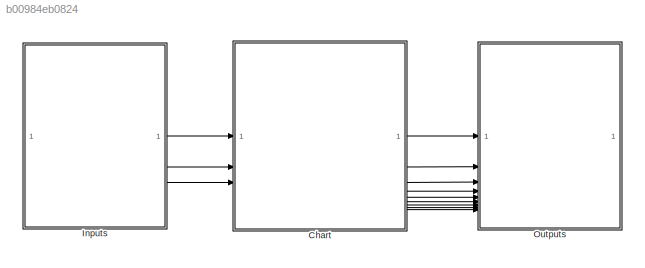
MODEL slx_b00984eb0824
KIND model
CONFIG AbsTol = auto
CONFIG EnableMultiTasking = on
CONFIG FixedStep = 1e-3
CONFIG MaxStep = auto
CONFIG MinStep = auto
CONFIG RelTol = 1e-3
CONFIG SampleTimeConstraint = Unconstrained
CONFIG SolverName = FixedStepAuto
CONFIG StartTime = 0.0
CONFIG StopTime = 10.0
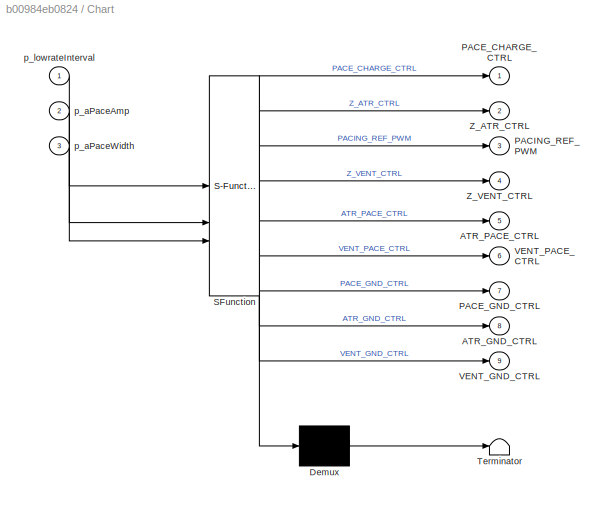
BLOCK [SubSystem] Chart
  ErrorFcn = Stateflow.Translate.translate
  PermitHierarchicalResolution = ExplicitOnly
  PortSchema = {"entries":[{"content":{"sides":[{"content":{"connectorIds":["In2","In1","In3"]},"type":"ConnectorPlacement.EquallySpacedRectSide","uuid":"98db9cea-c46a-4cd8-8963-54ca314d30e1"},{"content":{"connectorIds":["Out1","Out2","Out3","Out4","Out5","Out6","Out7","Out8","Out9"],"side":"RIGHT"},"type":"ConnectorPlacement.EquallySpacedRectSide","uuid":"53c86289-975b-4bf4-bda6-3305a5df9915"},{"content":{"conn...<+308ch>
  SFBlockType = Chart
  TreatAsAtomicUnit = on
BLOCK [Demux] Chart/ Demux 
  Outputs = 1
BLOCK [S-Function] Chart/ SFunction 
  EnableBusSupport = on
  FunctionName = sf_sfun
  PortCounts = [3 10]
  SFcnIsStateOwnerBlock = off
  SFunctionDeploymentMode = off
  Tag = Stateflow S-Function 3
BLOCK [Terminator] Chart/ Terminator 
BLOCK [Outport] Chart/ATR_GND_CTRL
  Port = 8
BLOCK [Outport] Chart/ATR_PACE_CTRL
  Port = 5
BLOCK [Outport] Chart/PACE_CHARGE_CTRL
BLOCK [Outport] Chart/PACE_GND_CTRL
  Port = 7
BLOCK [Outport] Chart/PACING_REF_PWM
  Port = 3
BLOCK [Outport] Chart/VENT_GND_CTRL
  Port = 9
BLOCK [Outport] Chart/VENT_PACE_CTRL
  Port = 6
BLOCK [Outport] Chart/Z_ATR_CTRL
  Port = 2
BLOCK [Outport] Chart/Z_VENT_CTRL
  Port = 4
BLOCK [Inport] Chart/p_aPaceAmp
  Port = 2
BLOCK [Inport] Chart/p_aPaceWidth
  Port = 3
BLOCK [Inport] Chart/p_lowrateInterval
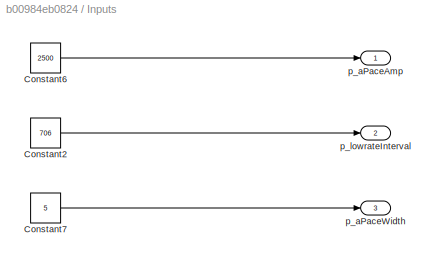
BLOCK [SubSystem] Inputs
BLOCK [Constant] Inputs/Constant2
  Value = 706
BLOCK [Constant] Inputs/Constant6
  Value = 2500
BLOCK [Constant] Inputs/Constant7
  Value = 5
BLOCK [Outport] Inputs/p_aPaceAmp
BLOCK [Outport] Inputs/p_aPaceWidth
  Port = 3
BLOCK [Outport] Inputs/p_lowrateInterval
  Port = 2
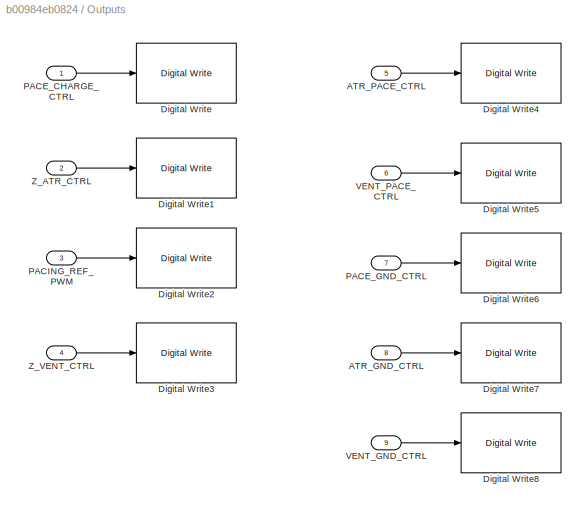
BLOCK [SubSystem] Outputs
BLOCK [Inport] Outputs/ATR_GND_CTRL
  Port = 8
BLOCK [Inport] Outputs/ATR_PACE_CTRL
  Port = 5
BLOCK [Reference] Outputs/Digital Write  REF=frdmk64flib/Digital Write
  SourceBlock = frdmk64flib/Digital Write
  SourceType = freedomk64f.DigitalWrite
BLOCK [Reference] Outputs/Digital Write1  REF=frdmk64flib/Digital Write
  SourceBlock = frdmk64flib/Digital Write
  SourceType = freedomk64f.DigitalWrite
BLOCK [Reference] Outputs/Digital Write2  REF=frdmk64flib/Digital Write
  SourceBlock = frdmk64flib/Digital Write
  SourceType = freedomk64f.DigitalWrite
BLOCK [Reference] Outputs/Digital Write3  REF=frdmk64flib/Digital Write
  SourceBlock = frdmk64flib/Digital Write
  SourceType = freedomk64f.DigitalWrite
BLOCK [Reference] Outputs/Digital Write4  REF=frdmk64flib/Digital Write
  SourceBlock = frdmk64flib/Digital Write
  SourceType = freedomk64f.DigitalWrite
BLOCK [Reference] Outputs/Digital Write5  REF=frdmk64flib/Digital Write
  SourceBlock = frdmk64flib/Digital Write
  SourceType = freedomk64f.DigitalWrite
BLOCK [Reference] Outputs/Digital Write6  REF=frdmk64flib/Digital Write
  SourceBlock = frdmk64flib/Digital Write
  SourceType = freedomk64f.DigitalWrite
BLOCK [Reference] Outputs/Digital Write7  REF=frdmk64flib/Digital Write
  SourceBlock = frdmk64flib/Digital Write
  SourceType = freedomk64f.DigitalWrite
BLOCK [Reference] Outputs/Digital Write8  REF=frdmk64flib/Digital Write
  SourceBlock = frdmk64flib/Digital Write
  SourceType = freedomk64f.DigitalWrite
BLOCK [Inport] Outputs/PACE_CHARGE_CTRL
BLOCK [Inport] Outputs/PACE_GND_CTRL
  Port = 7
BLOCK [Inport] Outputs/PACING_REF_PWM
  Port = 3
BLOCK [Inport] Outputs/VENT_GND_CTRL
  Port = 9
BLOCK [Inport] Outputs/VENT_PACE_CTRL
  Port = 6
BLOCK [Inport] Outputs/Z_ATR_CTRL
  Port = 2
BLOCK [Inport] Outputs/Z_VENT_CTRL
  Port = 4
LINE Chart:1 -> Outputs:1
LINE Chart:2 -> Outputs:2
LINE Chart:3 -> Outputs:3
LINE Chart:4 -> Outputs:4
LINE Chart:5 -> Outputs:5
LINE Chart:6 -> Outputs:6
LINE Chart:7 -> Outputs:7
LINE Chart:8 -> Outputs:8
LINE Chart:9 -> Outputs:9
LINE Inputs/Constant2:1 -> Inputs/p_lowrateInterval:1
LINE Inputs/Constant6:1 -> Inputs/p_aPaceAmp:1
LINE Inputs/Constant7:1 -> Inputs/p_aPaceWidth:1
LINE Inputs:1 -> Chart:2
LINE Inputs:2 -> Chart:1
LINE Inputs:3 -> Chart:3
LINE Outputs/ATR_GND_CTRL:1 -> Outputs/Digital Write7:1
LINE Outputs/ATR_PACE_CTRL:1 -> Outputs/Digital Write4:1
LINE Outputs/PACE_CHARGE_CTRL:1 -> Outputs/Digital Write:1
LINE Outputs/PACE_GND_CTRL:1 -> Outputs/Digital Write6:1
LINE Outputs/PACING_REF_PWM:1 -> Outputs/Digital Write2:1
LINE Outputs/VENT_GND_CTRL:1 -> Outputs/Digital Write8:1
LINE Outputs/VENT_PACE_CTRL:1 -> Outputs/Digital Write5:1
LINE Outputs/Z_ATR_CTRL:1 -> Outputs/Digital Write1:1
LINE Outputs/Z_VENT_CTRL:1 -> Outputs/Digital Write3:1
CHART Chart states=3 transitions=4
  STATE_LABEL 'Charging\nentry:\nATR_PACE_CTRL = 0;\nVENT_PACE_CTRL = 0;\nPACING_REF_PWM = ((p_aPaceAmp)/10)/5;\nPACE_CHARGE_CTRL = 1;'
  STATE_LABEL 'Pacing\nentry:\nPACE_CHARGE_CTRL = 0;\nPACE_GND_CTRL = 1;\nATR_PACE_CTRL = 1;\nATR_GND_CTRL = 0;\nZ_ATR_CTRL = 0;\nZ_VENT_CTRL = 0;\nVENT_GND_CTRL = 0;\nVENT_PACE_CTRL = 0;'
  STATE_LABEL 'Discharging\nentry:\nPACE_GND_CTRL = 1;\nVENT_PACE_CTRL = 0;\nZ_ATR_CTRL = 0;\nZ_VENT_CTRL = 0;\nATR_PACE_CTRL = 0;\nATR_GND_CTRL = 1;\nVENT_GND_CTRL = 0;\n'
CHART  states=0 transitions=0
